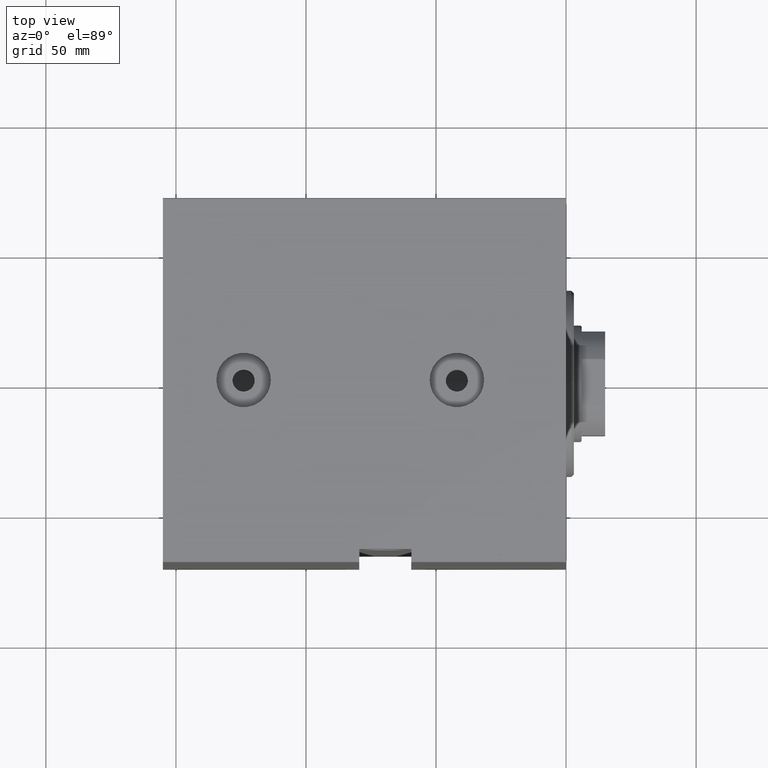
[diagram: clean part render]
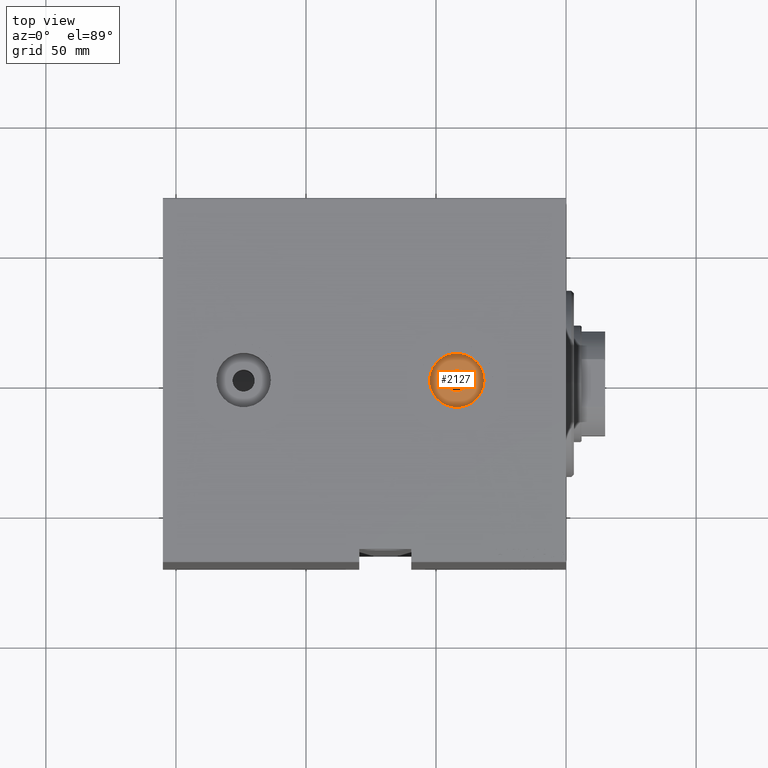
[diagram: same view with one face highlighted and labeled with its STEP entity id]
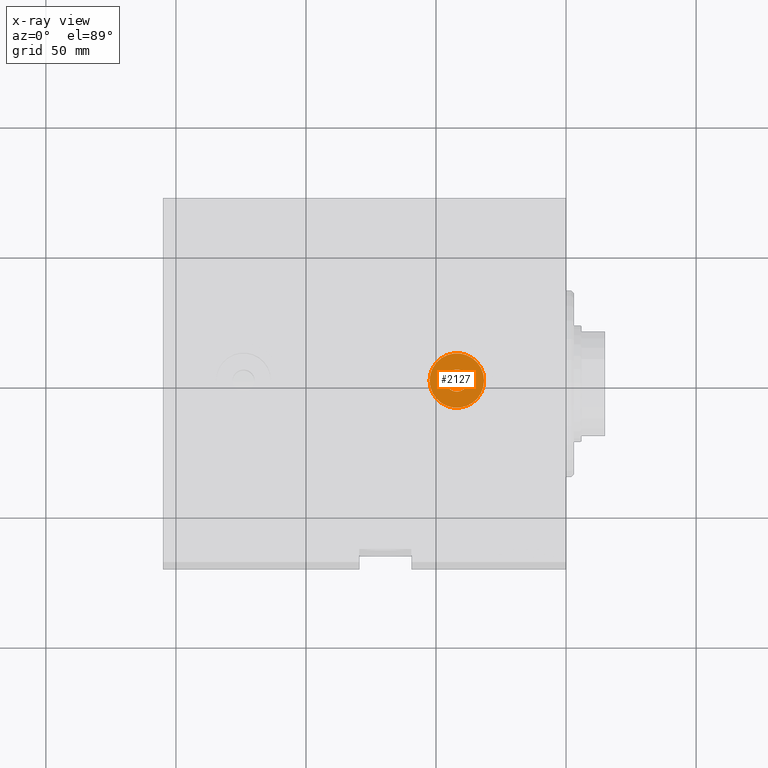
[diagram: x-ray of the same camera — body ghosted, the highlighted face saturated]
A machine part, top view. The second image highlights one B-rep face of the part: STEP entity #2127.
The next image is the same camera in x-ray: the body ghosted, the highlighted face saturated — about 0% of this face is hidden behind the body in this view.
In plain terms, the highlighted planar face has unit normal (0, 0, 1).
Its self-contained STEP definition (entity closure, byte-faithful):
#432 = EDGE_CURVE ( 'NONE', #31451, #5898, #21999, .T. ) ;
#1511 = DIRECTION ( 'NONE',  ( 1.000000000000000000, 0.000000000000000000, 0.000000000000000000 ) ) ;
#2127 = ADVANCED_FACE ( 'NONE', ( #33985, #3443 ), #34424, .T. ) ;
#2817 = AXIS2_PLACEMENT_3D ( 'NONE', #20379, #40866, #17030 ) ;
#3443 = FACE_OUTER_BOUND ( 'NONE', #24088, .T. ) ;
#4555 = CIRCLE ( 'NONE', #29444, 10.47999999999999687 ) ;
#4606 = EDGE_CURVE ( 'NONE', #16982, #39116, #21485, .T. ) ;
#5176 = ORIENTED_EDGE ( 'NONE', *, *, #432, .T. ) ;
#5898 = VERTEX_POINT ( 'NONE', #41124 ) ;
#11163 = CARTESIAN_POINT ( 'NONE',  ( 42.00000000000000000, -8.425799740458776865E-15, 71.73999999999999488 ) ) ;
#11944 = CARTESIAN_POINT ( 'NONE',  ( 42.00000000000000000, -8.425799740458776865E-15, 71.73999999999999488 ) ) ;
#12015 = DIRECTION ( 'NONE',  ( 1.000000000000000000, 0.000000000000000000, 0.000000000000000000 ) ) ;
#14171 = EDGE_CURVE ( 'NONE', #5898, #31451, #4555, .T. ) ;
#14953 = DIRECTION ( 'NONE',  ( 0.000000000000000000, 0.000000000000000000, 1.000000000000000000 ) ) ;
#15341 = AXIS2_PLACEMENT_3D ( 'NONE', #11944, #31828, #1511 ) ;
#16982 = VERTEX_POINT ( 'NONE', #29963 ) ;
#17030 = DIRECTION ( 'NONE',  ( 1.000000000000000000, 0.000000000000000000, -0.000000000000000000 ) ) ;
#18521 = CARTESIAN_POINT ( 'NONE',  ( 42.00000000000000000, -8.425799740458776865E-15, 71.73999999999999488 ) ) ;
#20379 = CARTESIAN_POINT ( 'NONE',  ( 42.00000000000000000, -8.425799740458776865E-15, 71.73999999999999488 ) ) ;
#21425 = DIRECTION ( 'NONE',  ( 1.000000000000000000, 0.000000000000000000, 0.000000000000000000 ) ) ;
#21485 = CIRCLE ( 'NONE', #41385, 4.249999999999996447 ) ;
#21999 = CIRCLE ( 'NONE', #31978, 10.47999999999999687 ) ;
#22009 = CARTESIAN_POINT ( 'NONE',  ( 31.52000000000000668, -7.142369894952351376E-15, 71.73999999999999488 ) ) ;
#24088 = EDGE_LOOP ( 'NONE', ( #28163, #5176 ) ) ;
#24834 = ORIENTED_EDGE ( 'NONE', *, *, #4606, .F. ) ;
#27465 = CIRCLE ( 'NONE', #15341, 4.249999999999996447 ) ;
#28110 = CARTESIAN_POINT ( 'NONE',  ( 42.00000000000000000, -8.425799740458776865E-15, 71.73999999999999488 ) ) ;
#28163 = ORIENTED_EDGE ( 'NONE', *, *, #14171, .T. ) ;
#29444 = AXIS2_PLACEMENT_3D ( 'NONE', #11163, #30582, #37479 ) ;
#29963 = CARTESIAN_POINT ( 'NONE',  ( 37.75000000000000711, -7.905324850821150908E-15, 71.73999999999999488 ) ) ;
#30469 = EDGE_CURVE ( 'NONE', #39116, #16982, #27465, .T. ) ;
#30582 = DIRECTION ( 'NONE',  ( 0.000000000000000000, 0.000000000000000000, 1.000000000000000000 ) ) ;
#31451 = VERTEX_POINT ( 'NONE', #22009 ) ;
#31828 = DIRECTION ( 'NONE',  ( 0.000000000000000000, 0.000000000000000000, 1.000000000000000000 ) ) ;
#31978 = AXIS2_PLACEMENT_3D ( 'NONE', #18521, #35675, #12015 ) ;
#32705 = CARTESIAN_POINT ( 'NONE',  ( 46.25000000000000000, -8.425799740458776865E-15, 71.73999999999999488 ) ) ;
#33985 = FACE_BOUND ( 'NONE', #40276, .T. ) ;
#34424 = PLANE ( 'NONE',  #2817 ) ;
#35675 = DIRECTION ( 'NONE',  ( 0.000000000000000000, 0.000000000000000000, 1.000000000000000000 ) ) ;
#37479 = DIRECTION ( 'NONE',  ( 1.000000000000000000, 0.000000000000000000, 0.000000000000000000 ) ) ;
#37538 = ORIENTED_EDGE ( 'NONE', *, *, #30469, .F. ) ;
#39116 = VERTEX_POINT ( 'NONE', #32705 ) ;
#40276 = EDGE_LOOP ( 'NONE', ( #37538, #24834 ) ) ;
#40866 = DIRECTION ( 'NONE',  ( 0.000000000000000000, 0.000000000000000000, 1.000000000000000000 ) ) ;
#41124 = CARTESIAN_POINT ( 'NONE',  ( 52.47999999999999687, -8.425799740458776865E-15, 71.73999999999999488 ) ) ;
#41385 = AXIS2_PLACEMENT_3D ( 'NONE', #28110, #14953, #21425 ) ;